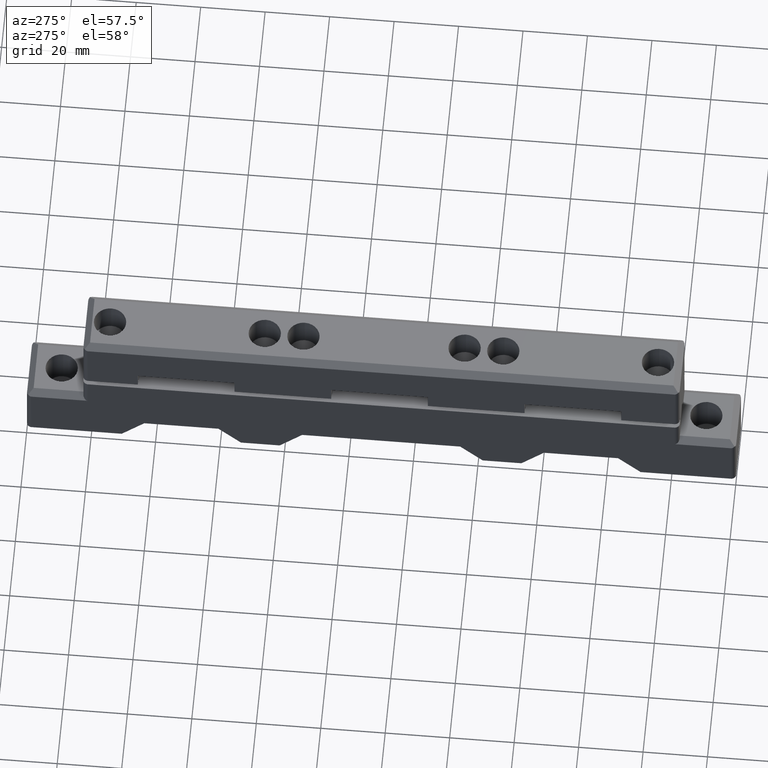
[diagram: clean part render]
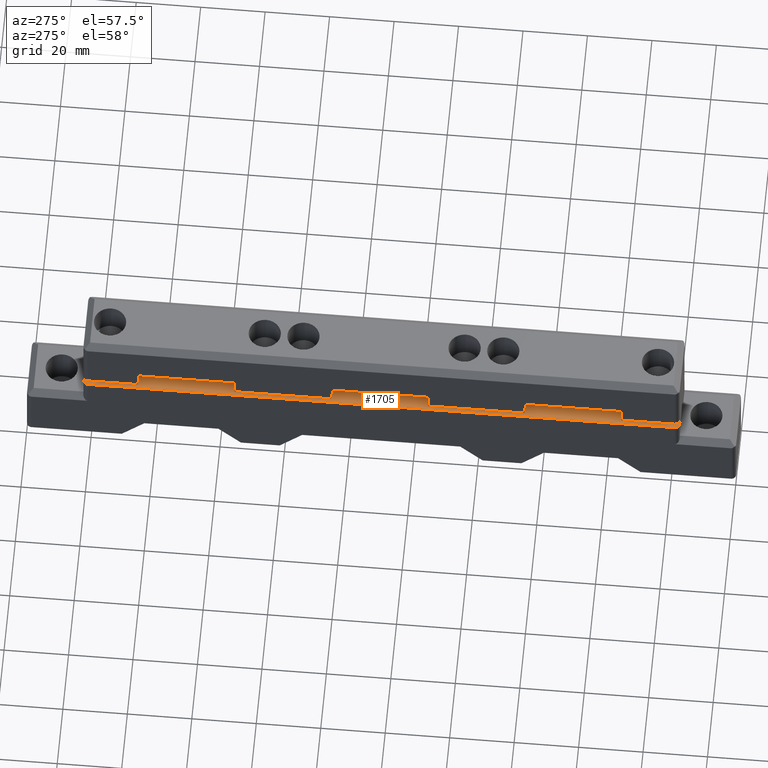
[diagram: same view with one face highlighted and labeled with its STEP entity id]
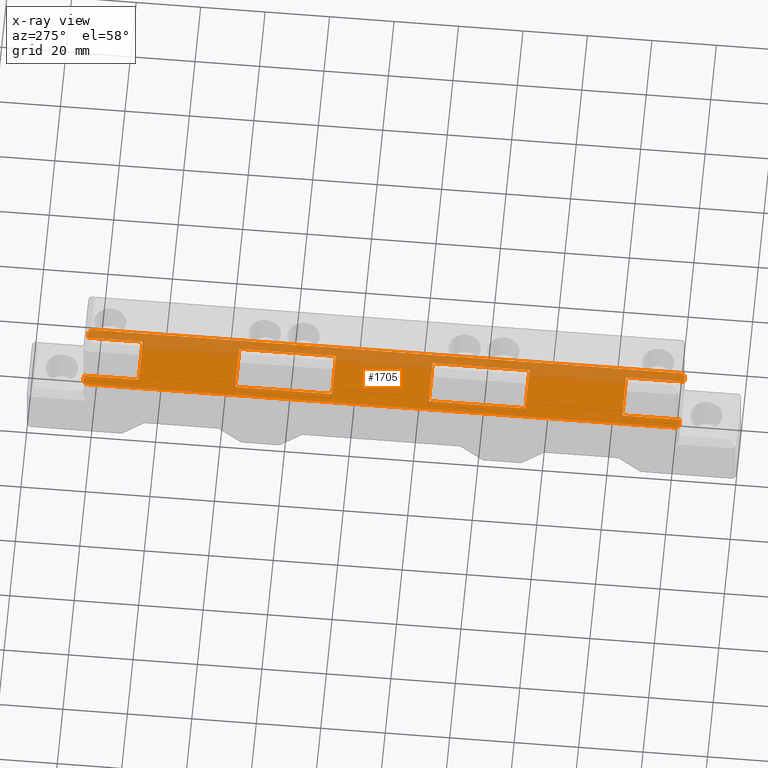
[diagram: x-ray of the same camera — body ghosted, the highlighted face saturated]
A machine part, auxiliary view. The second image highlights one B-rep face of the part: STEP entity #1705.
The next image is the same camera in x-ray: the body ghosted, the highlighted face saturated — about 30% of this face is hidden behind the body in this view.
In plain terms, the highlighted planar face has unit normal (0, 0, 1).
Its self-contained STEP definition (entity closure, byte-faithful):
#1 = ORIENTED_EDGE ( 'NONE', *, *, #1563, .T. ) ;
#9 = VECTOR ( 'NONE', #313, 1000.000000000000000 ) ;
#12 = AXIS2_PLACEMENT_3D ( 'NONE', #403, #900, #2103 ) ;
#25 = CARTESIAN_POINT ( 'NONE',  ( 202.5000000000000000, 27.00000000000000000, -17.00000000000000000 ) ) ;
#40 = CARTESIAN_POINT ( 'NONE',  ( 17.50000000000000000, 27.00000000000000000, -20.00000000000000000 ) ) ;
#42 = CARTESIAN_POINT ( 'NONE',  ( 17.50000000000000000, 27.00000000000000000, -17.00000000000000000 ) ) ;
#46 = VERTEX_POINT ( 'NONE', #915 ) ;
#60 = CARTESIAN_POINT ( 'NONE',  ( 65.50000000000000000, 27.00000000000000000, -17.00000000000000000 ) ) ;
#63 = VERTEX_POINT ( 'NONE', #1601 ) ;
#96 = AXIS2_PLACEMENT_3D ( 'NONE', #675, #2599, #2636 ) ;
#102 = CARTESIAN_POINT ( 'NONE',  ( 125.5000000000000000, 27.00000000000000000, -17.00000000000000000 ) ) ;
#110 = EDGE_CURVE ( 'NONE', #2739, #2416, #2868, .T. ) ;
#130 = EDGE_CURVE ( 'NONE', #46, #1352, #586, .T. ) ;
#159 = EDGE_CURVE ( 'NONE', #1006, #2218, #1497, .T. ) ;
#175 = VERTEX_POINT ( 'NONE', #25 ) ;
#203 = PLANE ( 'NONE',  #96 ) ;
#228 = VERTEX_POINT ( 'NONE', #819 ) ;
#232 = CARTESIAN_POINT ( 'NONE',  ( 155.5000000000000000, 27.00000000000000000, -17.00000000000000000 ) ) ;
#253 = VECTOR ( 'NONE', #706, 1000.000000000000000 ) ;
#259 = EDGE_CURVE ( 'NONE', #1219, #228, #1989, .T. ) ;
#268 = CARTESIAN_POINT ( 'NONE',  ( 125.5000000000000000, 27.00000000000000000, -3.000000000000000000 ) ) ;
#276 = CARTESIAN_POINT ( 'NONE',  ( 202.5000000000000000, 27.00000000000000000, -18.50000000000000000 ) ) ;
#283 = DIRECTION ( 'NONE',  ( -1.000000000000000000, 0.0000000000000000000, 0.0000000000000000000 ) ) ;
#301 = FACE_OUTER_BOUND ( 'NONE', #839, .T. ) ;
#306 = EDGE_CURVE ( 'NONE', #2108, #2373, #895, .T. ) ;
#313 = DIRECTION ( 'NONE',  ( 0.0000000000000000000, 0.0000000000000000000, -1.000000000000000000 ) ) ;
#328 = CARTESIAN_POINT ( 'NONE',  ( 17.50000000000000000, 27.00000000000000000, -17.00000000000000000 ) ) ;
#344 = CARTESIAN_POINT ( 'NONE',  ( 202.5000000000000000, 27.00000000000000000, -17.00000000000000000 ) ) ;
#348 = DIRECTION ( 'NONE',  ( 0.0000000000000000000, 0.0000000000000000000, 1.000000000000000000 ) ) ;
#371 = EDGE_CURVE ( 'NONE', #1775, #1219, #3181, .T. ) ;
#377 = ORIENTED_EDGE ( 'NONE', *, *, #2243, .T. ) ;
#379 = VECTOR ( 'NONE', #834, 1000.000000000000000 ) ;
#403 = CARTESIAN_POINT ( 'NONE',  ( 201.0000000000000000, 27.00000000000000000, -1.500000000000000000 ) ) ;
#426 = AXIS2_PLACEMENT_3D ( 'NONE', #2676, #2202, #1490 ) ;
#439 = CARTESIAN_POINT ( 'NONE',  ( 17.50000000000000000, 27.00000000000000000, -17.00000000000000000 ) ) ;
#489 = AXIS2_PLACEMENT_3D ( 'NONE', #3100, #2330, #2801 ) ;
#491 = VECTOR ( 'NONE', #2098, 1000.000000000000000 ) ;
#513 = VERTEX_POINT ( 'NONE', #2598 ) ;
#555 = VERTEX_POINT ( 'NONE', #715 ) ;
#586 = LINE ( 'NONE', #2683, #932 ) ;
#612 = VERTEX_POINT ( 'NONE', #1898 ) ;
#644 = CARTESIAN_POINT ( 'NONE',  ( 35.50000000000000000, 27.00000000000000000, -3.000000000000000000 ) ) ;
#675 = CARTESIAN_POINT ( 'NONE',  ( 17.50000000000000000, 27.00000000000000000, -20.00000000000000000 ) ) ;
#701 = VECTOR ( 'NONE', #348, 1000.000000000000000 ) ;
#706 = DIRECTION ( 'NONE',  ( 0.0000000000000000000, 0.0000000000000000000, 1.000000000000000000 ) ) ;
#713 = ORIENTED_EDGE ( 'NONE', *, *, #110, .T. ) ;
#715 = CARTESIAN_POINT ( 'NONE',  ( 202.5000000000000000, 27.00000000000000000, -1.500000000000000000 ) ) ;
#744 = ORIENTED_EDGE ( 'NONE', *, *, #130, .F. ) ;
#746 = DIRECTION ( 'NONE',  ( 0.0000000000000000000, 0.0000000000000000000, 1.000000000000000000 ) ) ;
#766 = DIRECTION ( 'NONE',  ( 0.0000000000000000000, 0.0000000000000000000, 1.000000000000000000 ) ) ;
#776 = CARTESIAN_POINT ( 'NONE',  ( 95.50000000000000000, 27.00000000000000000, -20.00000000000000000 ) ) ;
#777 = CARTESIAN_POINT ( 'NONE',  ( 17.50000000000000000, 27.00000000000000000, 0.0000000000000000000 ) ) ;
#819 = CARTESIAN_POINT ( 'NONE',  ( 95.50000000000000000, 27.00000000000000000, -3.000000000000000000 ) ) ;
#834 = DIRECTION ( 'NONE',  ( 1.000000000000000000, -2.312964634635745400E-015, 0.0000000000000000000 ) ) ;
#839 = EDGE_LOOP ( 'NONE', ( #1, #1465, #1407, #1706, #1010, #2720, #2255, #2014, #1889, #1307, #2706, #377, #713, #1908, #2391, #744 ) ) ;
#841 = FACE_BOUND ( 'NONE', #2293, .T. ) ;
#875 = CARTESIAN_POINT ( 'NONE',  ( 17.50000000000000000, 27.00000000000000000, -3.000000000000000000 ) ) ;
#883 = CARTESIAN_POINT ( 'NONE',  ( 17.50000000000000000, 27.00000000000000000, -3.000000000000000000 ) ) ;
#895 = LINE ( 'NONE', #2751, #1258 ) ;
#900 = DIRECTION ( 'NONE',  ( 0.0000000000000000000, 1.000000000000000000, 0.0000000000000000000 ) ) ;
#915 = CARTESIAN_POINT ( 'NONE',  ( 17.50000000000000000, 27.00000000000000000, -17.00000000000000000 ) ) ;
#932 = VECTOR ( 'NONE', #3178, 1000.000000000000000 ) ;
#933 = DIRECTION ( 'NONE',  ( 0.0000000000000000000, 0.0000000000000000000, 1.000000000000000000 ) ) ;
#947 = CARTESIAN_POINT ( 'NONE',  ( 125.5000000000000000, 27.00000000000000000, -20.00000000000000000 ) ) ;
#972 = EDGE_CURVE ( 'NONE', #2831, #2146, #2855, .T. ) ;
#981 = DIRECTION ( 'NONE',  ( 0.0000000000000000000, 1.000000000000000000, 0.0000000000000000000 ) ) ;
#1006 = VERTEX_POINT ( 'NONE', #1292 ) ;
#1010 = ORIENTED_EDGE ( 'NONE', *, *, #2321, .T. ) ;
#1025 = EDGE_CURVE ( 'NONE', #2831, #1317, #1526, .T. ) ;
#1036 = AXIS2_PLACEMENT_3D ( 'NONE', #2940, #981, #746 ) ;
#1039 = VECTOR ( 'NONE', #2810, 1000.000000000000000 ) ;
#1051 = ORIENTED_EDGE ( 'NONE', *, *, #371, .T. ) ;
#1061 = CARTESIAN_POINT ( 'NONE',  ( 185.5000000000000000, 26.99999999999959900, -3.000000000000000000 ) ) ;
#1089 = EDGE_CURVE ( 'NONE', #2146, #1270, #1405, .T. ) ;
#1090 = VERTEX_POINT ( 'NONE', #1558 ) ;
#1103 = LINE ( 'NONE', #1773, #2052 ) ;
#1116 = ORIENTED_EDGE ( 'NONE', *, *, #1025, .T. ) ;
#1145 = EDGE_CURVE ( 'NONE', #1090, #228, #2135, .T. ) ;
#1165 = EDGE_CURVE ( 'NONE', #2218, #612, #3133, .T. ) ;
#1171 = CARTESIAN_POINT ( 'NONE',  ( 95.50000000000000000, 27.00000000000000000, -17.00000000000000000 ) ) ;
#1173 = DIRECTION ( 'NONE',  ( 1.000000000000000000, -2.312964634635745400E-015, 0.0000000000000000000 ) ) ;
#1204 = CARTESIAN_POINT ( 'NONE',  ( 185.5000000000000000, 27.00000000000000000, -20.00000000000000000 ) ) ;
#1219 = VERTEX_POINT ( 'NONE', #1171 ) ;
#1229 = ORIENTED_EDGE ( 'NONE', *, *, #1145, .F. ) ;
#1258 = VECTOR ( 'NONE', #2533, 1000.000000000000000 ) ;
#1266 = DIRECTION ( 'NONE',  ( -1.000000000000000000, 0.0000000000000000000, 0.0000000000000000000 ) ) ;
#1270 = VERTEX_POINT ( 'NONE', #1658 ) ;
#1282 = CIRCLE ( 'NONE', #12, 1.500000000000000000 ) ;
#1292 = CARTESIAN_POINT ( 'NONE',  ( 185.5000000000000000, 26.99999999999959900, -17.00000000000000000 ) ) ;
#1307 = ORIENTED_EDGE ( 'NONE', *, *, #159, .F. ) ;
#1309 = DIRECTION ( 'NONE',  ( 1.000000000000000000, -2.312964634635745400E-015, 0.0000000000000000000 ) ) ;
#1317 = VERTEX_POINT ( 'NONE', #232 ) ;
#1322 = LINE ( 'NONE', #777, #2848 ) ;
#1324 = DIRECTION ( 'NONE',  ( 1.000000000000000000, -2.312964634635745400E-015, 0.0000000000000000000 ) ) ;
#1329 = CARTESIAN_POINT ( 'NONE',  ( 17.50000000000000000, 27.00000000000000000, -17.00000000000000000 ) ) ;
#1349 = VERTEX_POINT ( 'NONE', #3143 ) ;
#1352 = VERTEX_POINT ( 'NONE', #1913 ) ;
#1401 = VECTOR ( 'NONE', #283, 1000.000000000000000 ) ;
#1405 = LINE ( 'NONE', #1804, #2690 ) ;
#1407 = ORIENTED_EDGE ( 'NONE', *, *, #306, .F. ) ;
#1442 = ORIENTED_EDGE ( 'NONE', *, *, #2981, .T. ) ;
#1465 = ORIENTED_EDGE ( 'NONE', *, *, #1849, .T. ) ;
#1474 = LINE ( 'NONE', #883, #2521 ) ;
#1490 = DIRECTION ( 'NONE',  ( 0.0000000000000000000, 0.0000000000000000000, 1.000000000000000000 ) ) ;
#1497 = LINE ( 'NONE', #1204, #3101 ) ;
#1503 = VECTOR ( 'NONE', #933, 1000.000000000000000 ) ;
#1526 = LINE ( 'NONE', #42, #379 ) ;
#1533 = DIRECTION ( 'NONE',  ( 1.000000000000000000, -2.312964634635745400E-015, 0.0000000000000000000 ) ) ;
#1554 = LINE ( 'NONE', #328, #2046 ) ;
#1558 = CARTESIAN_POINT ( 'NONE',  ( 65.50000000000000000, 27.00000000000000000, -3.000000000000000000 ) ) ;
#1563 = EDGE_CURVE ( 'NONE', #46, #1349, #1554, .T. ) ;
#1601 = CARTESIAN_POINT ( 'NONE',  ( 19.00000000000000000, 27.00000000000000000, -20.00000000000000000 ) ) ;
#1605 = DIRECTION ( 'NONE',  ( 0.0000000000000000000, 0.0000000000000000000, 1.000000000000000000 ) ) ;
#1616 = EDGE_CURVE ( 'NONE', #2108, #2748, #1474, .T. ) ;
#1635 = CARTESIAN_POINT ( 'NONE',  ( 201.0000000000000000, 27.00000000000000000, -20.00000000000000000 ) ) ;
#1658 = CARTESIAN_POINT ( 'NONE',  ( 155.5000000000000000, 27.00000000000000000, -3.000000000000000000 ) ) ;
#1676 = FACE_BOUND ( 'NONE', #2322, .T. ) ;
#1705 = ADVANCED_FACE ( 'NONE', ( #841, #1676, #301 ), #203, .T. ) ;
#1706 = ORIENTED_EDGE ( 'NONE', *, *, #1616, .T. ) ;
#1751 = LINE ( 'NONE', #439, #3002 ) ;
#1773 = CARTESIAN_POINT ( 'NONE',  ( 202.5000000000000000, 27.00000000000000000, -3.000000000000000000 ) ) ;
#1775 = VERTEX_POINT ( 'NONE', #60 ) ;
#1804 = CARTESIAN_POINT ( 'NONE',  ( 17.50000000000000000, 27.00000000000000000, -3.000000000000000000 ) ) ;
#1828 = LINE ( 'NONE', #2152, #253 ) ;
#1849 = EDGE_CURVE ( 'NONE', #1349, #2373, #1918, .T. ) ;
#1863 = CARTESIAN_POINT ( 'NONE',  ( 17.50000000000000000, 27.00000000000000000, -3.000000000000000000 ) ) ;
#1889 = ORIENTED_EDGE ( 'NONE', *, *, #1165, .F. ) ;
#1894 = LINE ( 'NONE', #3058, #491 ) ;
#1898 = CARTESIAN_POINT ( 'NONE',  ( 202.5000000000000000, 27.00000000000000000, -3.000000000000000000 ) ) ;
#1908 = ORIENTED_EDGE ( 'NONE', *, *, #2643, .T. ) ;
#1913 = CARTESIAN_POINT ( 'NONE',  ( 17.50000000000000000, 27.00000000000000000, -18.50000000000000000 ) ) ;
#1918 = LINE ( 'NONE', #2853, #1503 ) ;
#1937 = CIRCLE ( 'NONE', #489, 1.500000000000000000 ) ;
#1989 = LINE ( 'NONE', #776, #701 ) ;
#2014 = ORIENTED_EDGE ( 'NONE', *, *, #2144, .F. ) ;
#2029 = ORIENTED_EDGE ( 'NONE', *, *, #2482, .F. ) ;
#2046 = VECTOR ( 'NONE', #1309, 1000.000000000000000 ) ;
#2052 = VECTOR ( 'NONE', #2956, 1000.000000000000000 ) ;
#2098 = DIRECTION ( 'NONE',  ( 0.0000000000000000000, 0.0000000000000000000, 1.000000000000000000 ) ) ;
#2100 = VECTOR ( 'NONE', #2763, 1000.000000000000000 ) ;
#2103 = DIRECTION ( 'NONE',  ( 0.0000000000000000000, 0.0000000000000000000, 1.000000000000000000 ) ) ;
#2108 = VERTEX_POINT ( 'NONE', #2982 ) ;
#2135 = LINE ( 'NONE', #875, #1039 ) ;
#2144 = EDGE_CURVE ( 'NONE', #612, #555, #1103, .T. ) ;
#2146 = VERTEX_POINT ( 'NONE', #268 ) ;
#2152 = CARTESIAN_POINT ( 'NONE',  ( 65.50000000000000000, 27.00000000000000000, -20.00000000000000000 ) ) ;
#2201 = VECTOR ( 'NONE', #2380, 1000.000000000000000 ) ;
#2202 = DIRECTION ( 'NONE',  ( 0.0000000000000000000, 1.000000000000000000, 0.0000000000000000000 ) ) ;
#2203 = ORIENTED_EDGE ( 'NONE', *, *, #972, .F. ) ;
#2218 = VERTEX_POINT ( 'NONE', #1061 ) ;
#2228 = CIRCLE ( 'NONE', #426, 1.500000000000001300 ) ;
#2243 = EDGE_CURVE ( 'NONE', #175, #2739, #2724, .T. ) ;
#2251 = VERTEX_POINT ( 'NONE', #3033 ) ;
#2255 = ORIENTED_EDGE ( 'NONE', *, *, #2361, .T. ) ;
#2262 = ORIENTED_EDGE ( 'NONE', *, *, #259, .T. ) ;
#2293 = EDGE_LOOP ( 'NONE', ( #1116, #1442, #2849, #2203 ) ) ;
#2321 = EDGE_CURVE ( 'NONE', #2748, #2251, #1937, .T. ) ;
#2322 = EDGE_LOOP ( 'NONE', ( #1051, #2262, #1229, #2029 ) ) ;
#2330 = DIRECTION ( 'NONE',  ( 0.0000000000000000000, 1.000000000000000000, 0.0000000000000000000 ) ) ;
#2361 = EDGE_CURVE ( 'NONE', #513, #555, #1282, .T. ) ;
#2373 = VERTEX_POINT ( 'NONE', #644 ) ;
#2380 = DIRECTION ( 'NONE',  ( 0.0000000000000000000, 0.0000000000000000000, 1.000000000000000000 ) ) ;
#2391 = ORIENTED_EDGE ( 'NONE', *, *, #2592, .T. ) ;
#2416 = VERTEX_POINT ( 'NONE', #1635 ) ;
#2428 = EDGE_CURVE ( 'NONE', #1006, #175, #1751, .T. ) ;
#2464 = CARTESIAN_POINT ( 'NONE',  ( 17.50000000000000000, 27.00000000000000000, -1.500000000000000000 ) ) ;
#2482 = EDGE_CURVE ( 'NONE', #1775, #1090, #1828, .T. ) ;
#2521 = VECTOR ( 'NONE', #1605, 1000.000000000000000 ) ;
#2533 = DIRECTION ( 'NONE',  ( 1.000000000000000000, -2.312964634635745400E-015, 0.0000000000000000000 ) ) ;
#2592 = EDGE_CURVE ( 'NONE', #63, #1352, #2228, .T. ) ;
#2598 = CARTESIAN_POINT ( 'NONE',  ( 201.0000000000000000, 27.00000000000000000, 0.0000000000000000000 ) ) ;
#2599 = DIRECTION ( 'NONE',  ( 0.0000000000000000000, 1.000000000000000000, 0.0000000000000000000 ) ) ;
#2636 = DIRECTION ( 'NONE',  ( 0.0000000000000000000, 0.0000000000000000000, 1.000000000000000000 ) ) ;
#2643 = EDGE_CURVE ( 'NONE', #2416, #63, #2933, .T. ) ;
#2676 = CARTESIAN_POINT ( 'NONE',  ( 19.00000000000000000, 27.00000000000000000, -18.50000000000000000 ) ) ;
#2683 = CARTESIAN_POINT ( 'NONE',  ( 17.50000000000000000, 27.00000000000000000, -17.00000000000000000 ) ) ;
#2690 = VECTOR ( 'NONE', #1533, 1000.000000000000000 ) ;
#2706 = ORIENTED_EDGE ( 'NONE', *, *, #2428, .T. ) ;
#2720 = ORIENTED_EDGE ( 'NONE', *, *, #2730, .F. ) ;
#2724 = LINE ( 'NONE', #344, #9 ) ;
#2730 = EDGE_CURVE ( 'NONE', #513, #2251, #1322, .T. ) ;
#2739 = VERTEX_POINT ( 'NONE', #276 ) ;
#2748 = VERTEX_POINT ( 'NONE', #2464 ) ;
#2751 = CARTESIAN_POINT ( 'NONE',  ( 17.50000000000000000, 27.00000000000000000, -3.000000000000000000 ) ) ;
#2763 = DIRECTION ( 'NONE',  ( 1.000000000000000000, -2.312964634635745400E-015, 0.0000000000000000000 ) ) ;
#2801 = DIRECTION ( 'NONE',  ( 0.0000000000000000000, 0.0000000000000000000, 1.000000000000000000 ) ) ;
#2810 = DIRECTION ( 'NONE',  ( 1.000000000000000000, -2.312964634635745400E-015, 0.0000000000000000000 ) ) ;
#2831 = VERTEX_POINT ( 'NONE', #102 ) ;
#2848 = VECTOR ( 'NONE', #1266, 1000.000000000000000 ) ;
#2849 = ORIENTED_EDGE ( 'NONE', *, *, #1089, .F. ) ;
#2853 = CARTESIAN_POINT ( 'NONE',  ( 35.50000000000000000, 27.00000000000000000, -20.00000000000000000 ) ) ;
#2855 = LINE ( 'NONE', #947, #2201 ) ;
#2868 = CIRCLE ( 'NONE', #1036, 1.500000000000001300 ) ;
#2933 = LINE ( 'NONE', #40, #1401 ) ;
#2940 = CARTESIAN_POINT ( 'NONE',  ( 201.0000000000000000, 27.00000000000000000, -18.50000000000000000 ) ) ;
#2956 = DIRECTION ( 'NONE',  ( 0.0000000000000000000, 0.0000000000000000000, 1.000000000000000000 ) ) ;
#2981 = EDGE_CURVE ( 'NONE', #1317, #1270, #1894, .T. ) ;
#2982 = CARTESIAN_POINT ( 'NONE',  ( 17.50000000000000000, 27.00000000000000000, -3.000000000000000000 ) ) ;
#3002 = VECTOR ( 'NONE', #1173, 1000.000000000000000 ) ;
#3033 = CARTESIAN_POINT ( 'NONE',  ( 19.00000000000000000, 27.00000000000000000, 0.0000000000000000000 ) ) ;
#3050 = VECTOR ( 'NONE', #1324, 1000.000000000000000 ) ;
#3058 = CARTESIAN_POINT ( 'NONE',  ( 155.5000000000000000, 27.00000000000000000, -20.00000000000000000 ) ) ;
#3100 = CARTESIAN_POINT ( 'NONE',  ( 19.00000000000000000, 27.00000000000000000, -1.500000000000000000 ) ) ;
#3101 = VECTOR ( 'NONE', #766, 1000.000000000000000 ) ;
#3133 = LINE ( 'NONE', #1863, #3050 ) ;
#3143 = CARTESIAN_POINT ( 'NONE',  ( 35.50000000000000000, 27.00000000000000000, -17.00000000000000000 ) ) ;
#3178 = DIRECTION ( 'NONE',  ( 0.0000000000000000000, 0.0000000000000000000, -1.000000000000000000 ) ) ;
#3181 = LINE ( 'NONE', #1329, #2100 ) ;